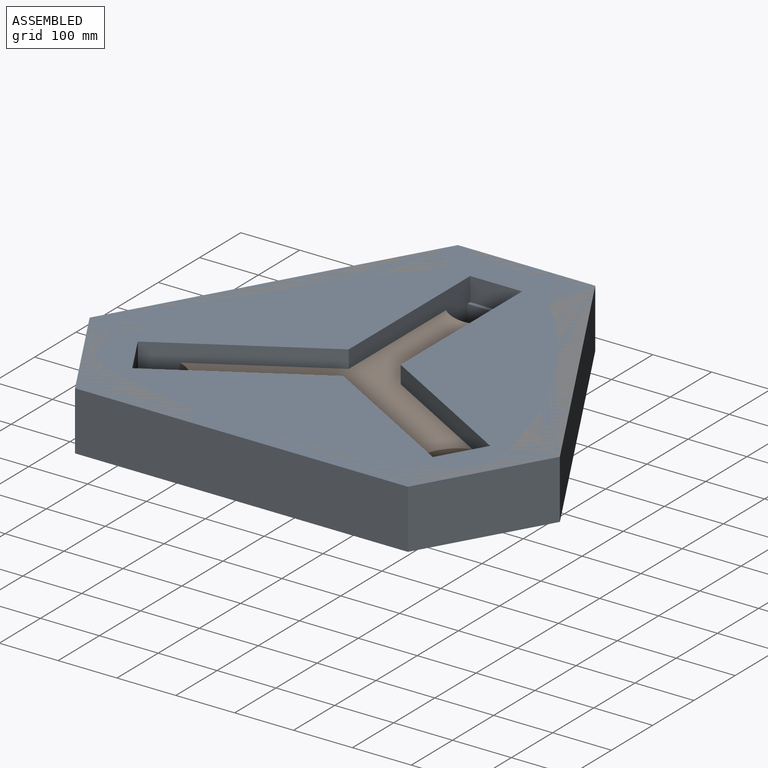
[diagram: assembled view]
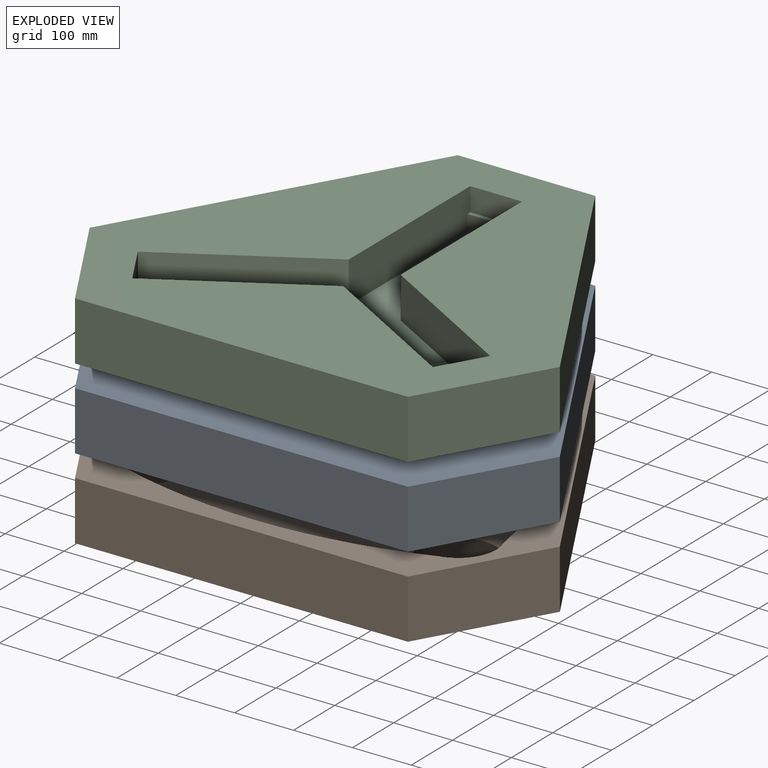
[diagram: exploded view]
GUIDED TOUR — FREECAD ASSEMBLY "styrofoam"

This assembly has 3 components, labeled P0..P2 below (a component is one placed body or linked part; the same part can appear more than once), held together by 0 modeled joints plus 3 derived contact edges. A joint is a constraint between two components; its type names the relative motion it leaves free:
  CONTACT — a derived adjacency edge — the two components touch in the source model (clearance under 2% of the assembly's diagonal); it is measured from the geometry, not a modeled constraint.
Axis/direction vectors are unit vectors and 'through' points are millimeter coordinates, both in the assembly's world frame.

MATES
  1. CONTACT "contact_0_1": P0 <-> P1, contact direction (0.000, 0.000, -1.000) through (399.45, -95.86, 0.00) mm (derived from contact, not a modeled constraint)
  2. CONTACT "contact_0_2": P0 <-> P2, contact direction (0.000, 0.000, 1.000) through (44.10, 313.32, 60.00) mm (derived from contact, not a modeled constraint)
  3. CONTACT "contact_1_2": P1 <-> P2, contact direction (0.000, 0.000, 1.000) through (399.45, -95.86, 0.00) mm (derived from contact, not a modeled constraint)

ASSEMBLY ORDER
  1. P0 — the base component [order heuristic]
  2. P1 [order heuristic]
  3. P2 [order heuristic]
Order-tag legend:
  [order heuristic] — this assembly is geometrically interlocked (no collision-free removal order exists), so components are listed in mate-graph order; insertion feasibility is not verified.

Of the 3 components, 3 carry a construction recipe — the FreeCAD feature program (sketches with constraints, then the solid features that consume them) that regenerates the part from scratch, quoted from this document or from the linked companion document it references; the rest are supplied as boundary geometry only. The tour below walks the components in assembly order: each is shown spotlighted twice — in the assembled view, then in the exploded view, where a leader line traces a displaced component back to its assembled socket (components that stay in place when exploded have no leader line; saturated green if recipe-attached, orange if geometry-only; every other component desaturated gray) — followed by its recipe or geometry summary and the mates that hold it.
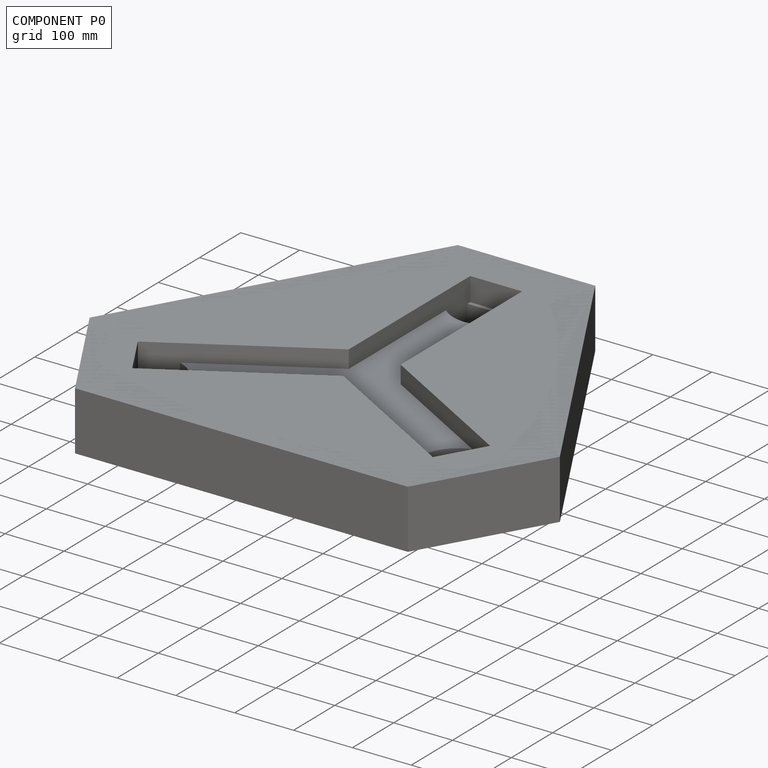
[diagram: component P0 — assembled]
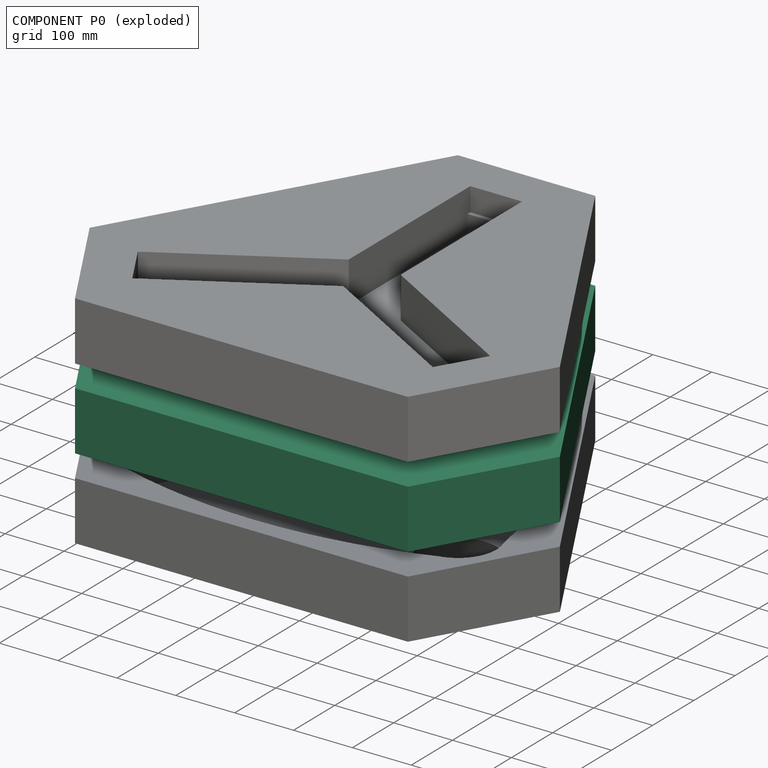
[diagram: component P0 — exploded]
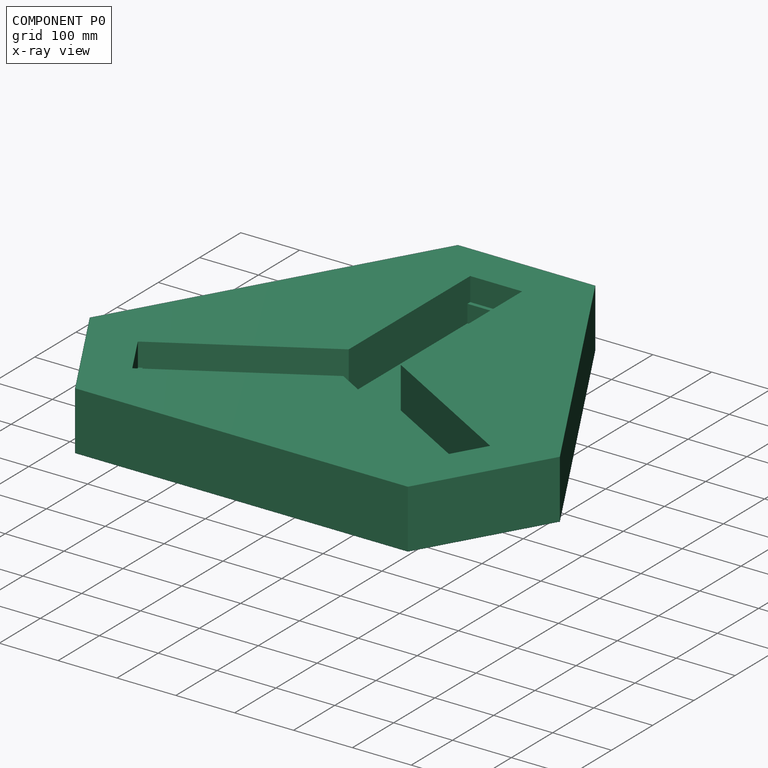
[diagram: component P0 — x-ray view]
COMPONENT P0 — recipe-attached ("Link", a linked part whose construction recipe lives in a companion FreeCAD document of the same project; that document's serialized recipe follows).
Held by: resting contact with P1 (derived edge); resting contact with P2 (derived edge).
Construction recipe (the companion document, serialized — sketch geometry with constraints, then the solid features built on it; lengths are millimeters unless a unit is written):

FCSTD DOCUMENT  (FreeCAD 0.21R32532 (Git))
Label: composit_full_size2part_model
License: All rights reserved
LicenseURL: http://en.wikipedia.org/wiki/All_rights_reserved
objects: App::Link×31, Part::FeaturePython×10, Sketcher::SketchObject×6, PartDesign::CoordinateSystem×4, PartDesign::SubShapeBinder×4, PartDesign::Pocket×4, App::DocumentObjectGroup×3, PartDesign::Body×3, PartDesign::Pad×2, App::FeaturePython×1, Part::Feature×1, PartDesign::FeatureBase×1, PartDesign::PolarPattern×1, App::Part×1
note: 42 computed .brp shape members not serialized (recipe doc carries the construction recipe); baked Part::Feature solids carry a one-line shape summary decoded from their .brp
EXTERNAL_REF file=composit_full_size2part.FCStd obj=Local_CS011
EXTERNAL_REF file=composit_full_size2part.FCStd obj=Body
EXTERNAL_REF file=composit_full_size2part.FCStd obj=Local_CS012
EXTERNAL_REF file=composit_full_size2part.FCStd obj=Body001
EXTERNAL_REF file=composit_full_size2part.FCStd obj=DatumPoint005
EXTERNAL_REF file=composit_full_size2part.FCStd obj=Local_CS066
EXTERNAL_REF file=composit_full_size2part.FCStd obj=Body020
EXTERNAL_REF file=basin_big.FCStd obj=Body_7
EXTERNAL_REF file=composit_full_size2part.FCStd obj=Body022
EXTERNAL_REF file=composit_full_size2part.FCStd obj=Local_CS051
EXTERNAL_REF file=composit_full_size2part.FCStd obj=Body019
EXTERNAL_REF file=composit_full_size2part.FCStd obj=Local_CS050
EXTERNAL_REF file=composit_full_size2part.FCStd obj=Local_CS052
EXTERNAL_REF file=composit_full_size2part.FCStd obj=basement_plywood
EXTERNAL_REF file=composit_full_size2part.FCStd obj=LCS_0
EXTERNAL_REF file=hub2108.FCStd obj=Local_CS001
EXTERNAL_REF file=hub2108.FCStd obj=Body
EXTERNAL_REF file=composit_full_size2part.FCStd obj=Local_CS068
EXTERNAL_REF file=hub2108.FCStd obj=Local_CS
EXTERNAL_REF file=composit_full_size2part.FCStd obj=Body042
EXTERNAL_REF file=composit_full_size2part.FCStd obj=Local_CS054
EXTERNAL_REF file=composit_full_size2part.FCStd obj=Local_CS067
EXTERNAL_REF file=composit_full_size2part.FCStd obj=Body028
EXTERNAL_REF file=composit_full_size2part.FCStd obj=Local_CS055
EXTERNAL_REF file=composit_full_size2part.FCStd obj=Local_CS069
EXTERNAL_REF file=composit_full_size2part.FCStd obj=Body029
EXTERNAL_REF file=composit_full_size2part.FCStd obj=Local_CS058
EXTERNAL_REF file=composit_full_size2part.FCStd obj=Local_CS059
EXTERNAL_REF file=composit_full_size2part.FCStd obj=Body034
EXTERNAL_REF file=composit_full_size2part.FCStd obj=Local_CS001
EXTERNAL_REF file=composit_full_size2part.FCStd obj=Local_CS064
EXTERNAL_REF file=composit_full_size2part.FCStd obj=Body041
EXTERNAL_REF file=composit_full_size2part.FCStd obj=Local_CS060
EXTERNAL_REF file=composit_full_size2part.FCStd obj=Local_CS061
EXTERNAL_REF file=composit_full_size2part.FCStd obj=Body033
EXTERNAL_REF file=composit_full_size2part.FCStd obj=Body045
EXTERNAL_REF file=composit_full_size2part.FCStd obj=Body048
EXTERNAL_REF file=composit_full_size2part.FCStd obj=Local_CS070
EXTERNAL_REF file=composit_full_size2part.FCStd obj=Part002
EXTERNAL_REF file=composit_full_size2part.FCStd obj=LCS_024
EXTERNAL_REF file=composit_full_size2part.FCStd obj=plexiglasss_shield
EXTERNAL_REF file=composit_full_size2part.FCStd obj=Local_CS005
EXTERNAL_REF file=ugol90degX40mm.FCStd obj=Local_CS
EXTERNAL_REF file=ugol90degX40mm.FCStd obj=Body
EXTERNAL_REF file=../Ручка-профиль CT2 L60.FCStd obj=Local_CS
EXTERNAL_REF file=../Ручка-профиль CT2 L60.FCStd obj=Body
EXTERNAL_REF file=composit_full_size2part.FCStd obj=Body049
EXTERNAL_REF file=composit_full_size2part.FCStd obj=Body043
EXTERNAL_REF file=composit_full_size2part.FCStd obj=Body026
EXTERNAL_REF file=composit_full_size2part.FCStd obj=Body050
EXTERNAL_REF file=composit_full_size2part.FCStd obj=Body051
EXTERNAL_REF file=composit_full_size2part.FCStd obj=Body054
EXTERNAL_REF file=composit_full_size2part_transport.FCStd obj=Body001
EXTERNAL_REF file=composit_full_size2part_transport.FCStd obj=Body
EXTERNAL_REF file=composit_full_size2part.FCStd obj=Local_CS073
EXTERNAL_REF file=composit_full_size2part.FCStd obj=Body058

FEATURE [PartDesign::CoordinateSystem] LCS_Origin
  AttacherType = Attacher::AttachEngine3D
  MapMode = 2
  Support = -> [X_Axis]
FEATURE [App::DocumentObjectGroup] Constraints
FEATURE [App::FeaturePython] Variables  # WARN: FeaturePython — macro-defined, semantics opaque (R4)
  Type = App::PropertyContainer
FEATURE [App::DocumentObjectGroup] Configurations
FEATURE [App::Link] Body_material_0_30ansi  label="Body_material_0.30ansi"
  AssemblyType = Part::Link
  AttachedBy = #Local_CS011
  AttachedTo = Parent Assembly#LCS_Origin
  LinkPlacement = pos=(0,8.37158,0) rot=(0,0,1;0rad)
  LinkedObject = -> <external composit_full_size2part.FCStd>#Body
  Placement = pos=(0,8.37158,0) rot=(0,0,1;0rad)
  SolverId = Asm4EE
  expr: Placement = LCS_Origin.Placement * AttachmentOffset * composit_full_size2part#Local_CS011.Placement ^ -1
FEATURE [App::Link] Body001_material_0_30ansi  label="Body001_material_0.30ansi"
  AssemblyType = Part::Link
  AttachedBy = #Local_CS012
  AttachedTo = Parent Assembly#LCS_Origin
  AttachmentOffset = pos=(0,0,0) rot=(0,0,1;4.18879rad)
  LinkPlacement = pos=(7.25,-4.18579,0) rot=(0,0,1;4.18879rad)
  LinkedObject = -> <external composit_full_size2part.FCStd>#Body001
  Placement = pos=(7.25,-4.18579,0) rot=(0,0,1;4.18879rad)
  SolverId = Asm4EE
  expr: Placement = LCS_Origin.Placement * AttachmentOffset * composit_full_size2part#Local_CS012.Placement ^ -1
FEATURE [App::Link] hor_amplifier
  AssemblyType = Part::Link
  AttachedBy = #Local_CS066
  AttachedTo = Body_material_0_30ansi#DatumPoint005
  AttachmentOffset = pos=(0,0,0) rot=(1,0,0;4.71239rad)
  LinkPlacement = pos=(1.7e-15,201.803,407.176) rot=(1,0,0;3.19975rad)
  LinkedObject = -> <external composit_full_size2part.FCStd>#Body020
  Placement = pos=(1.7e-15,201.803,407.176) rot=(1,0,0;3.19975rad)
  SolverId = Asm4EE
  expr: Placement = Body_material_0_30ansi.Placement * composit_full_size2part#DatumPoint005.Placement * AttachmentOffset * composit_full_size2part#Local_CS066.Placement ^ -1
FEATURE [PartDesign::CoordinateSystem] Local_CS044
  AttacherType = Attacher::AttachEngine3D
  MapMode = 4
  Placement = pos=(0,0,0) rot=(0.57735,0.57735,0.57735;2.0944rad)
  Support = -> [XY_Plane044]
FEATURE [Part::Feature] Part__Feature  label="module002"
  shape: bbox 170 x 148 x 41.12 mm, 715 faces (baked)
FEATURE [PartDesign::FeatureBase] BaseFeature
  BaseFeature = -> Part__Feature
FEATURE [PartDesign::Body] Body017
  BaseFeature = -> Part__Feature
  Group = -> [BaseFeature,Local_CS044]
  Origin = -> Origin044
  Tip = -> BaseFeature
FEATURE [App::DocumentObjectGroup] Parts
  Group = -> [Body017,Part__Feature]
FEATURE [App::Link] Body024_material_0_30ansi  label="Body024_material_0.30ansi"
  AssemblyType = Part::Link
  AttachedBy = #Local_CS049
  AttachedTo = Parent Assembly#LCS_Origin
  AttachmentOffset = pos=(0,0,3) rot=(0,0,1;-1.0472rad)
  LinkPlacement = pos=(0,0,3) rot=(0,0,1;5.23599rad)
  Placement = pos=(0,0,3) rot=(0,0,1;5.23599rad)
  SolverId = Asm4EE
  expr: Placement = LCS_Origin.Placement * AttachmentOffset * composit_full_size2part#Local_CS049.Placement ^ -1
FEATURE [App::Link] basin
  AssemblyType = Part::Link
  AttachedBy = #LCS_021
  AttachedTo = Parent Assembly#LCS_Origin
  LinkedObject = -> <external basin_big.FCStd>#Body_7
  SolverId = Asm4EE
  expr: LinkedObject = <<basin_big>>#<<basin>>._self
FEATURE [App::Link] basin_limiter_body
  LinkPlacement = pos=(0,0,0) rot=(0,0,1;2.0944rad)
  LinkedObject = -> <external composit_full_size2part.FCStd>#Body022
  Placement = pos=(0,0,0) rot=(0,0,1;2.0944rad)
FEATURE [App::Link] basement_proxy
  AssemblyType = Part::Link
  AttachedBy = #Local_CS051
  AttachedTo = Parent Assembly#LCS_Origin
  AttachmentOffset = pos=(0,0,0) rot=(0,0,1;-3.14159rad)
  LinkPlacement = pos=(0,0,-3) rot=(0,0,1;3.14159rad)
  LinkedObject = -> <external composit_full_size2part.FCStd>#Body019
  Placement = pos=(0,0,-3) rot=(0,0,1;3.14159rad)
  SolverId = Asm4EE
  expr: Placement = LCS_Origin.Placement * AttachmentOffset * composit_full_size2part#Local_CS051.Placement ^ -1
FEATURE [App::Link] basement_plywood
  AssemblyType = Part::Link
  AttachedBy = #Local_CS052
  AttachedTo = basement_proxy#Local_CS050
  AttachmentOffset = pos=(0,0,0) rot=(0,0,1;2.0944rad)
  LinkPlacement = pos=(0,0,-21) rot=(0,0,1;5.23599rad)
  LinkedObject = -> <external composit_full_size2part.FCStd>#basement_plywood
  Placement = pos=(0,0,-21) rot=(0,0,1;5.23599rad)
  SolverId = Asm4EE
  expr: Placement = basement_proxy.Placement * composit_full_size2part#Local_CS050.Placement * AttachmentOffset * composit_full_size2part#Local_CS052.Placement ^ -1
FEATURE [App::Link] hub2108
  AssemblyType = Part::Link
  AttachedBy = #Local_CS001
  AttachedTo = basement_plywood#LCS_0
  LinkPlacement = pos=(0,0,-88) rot=(0,0,1;5.23599rad)
  LinkedObject = -> <external hub2108.FCStd>#Body
  Placement = pos=(0,0,-88) rot=(0,0,1;5.23599rad)
  SolverId = Asm4EE
  expr: Placement = basement_plywood.Placement * composit_full_size2part#LCS_0.Placement * AttachmentOffset * hub2108#Local_CS001.Placement ^ -1
FEATURE [App::Link] basement2_proxy
  AssemblyType = Part::Link
  AttachedBy = #Local_CS068
  AttachedTo = hub2108#Local_CS
  AttachmentOffset = pos=(0,0,0) rot=(0,0,1;1.0472rad)
  LinkPlacement = pos=(0,0,-91) rot=(0,0,1;0rad)
  LinkedObject = -> <external composit_full_size2part.FCStd>#Body042
  Placement = pos=(0,0,-91) rot=(0,0,1;0rad)
  SolverId = Asm4EE
  expr: Placement = hub2108.Placement * hub2108#Local_CS.Placement * AttachmentOffset * composit_full_size2part#Local_CS068.Placement ^ -1
FEATURE [App::Link] plywood_basement_2
  AssemblyType = Part::Link
  AttachedBy = #Local_CS054
  AttachedTo = basement2_proxy#Local_CS067
  LinkPlacement = pos=(0,0,-109) rot=(0,0,1;0rad)
  LinkedObject = -> <external composit_full_size2part.FCStd>#Body028
  Placement = pos=(0,0,-109) rot=(0,0,1;0rad)
  SolverId = Asm4EE
  expr: Placement = basement2_proxy.Placement * composit_full_size2part#Local_CS067.Placement * AttachmentOffset * composit_full_size2part#Local_CS054.Placement ^ -1
FEATURE [App::Link] pillar_material_0_30ansi  label="pillar_material_0.30ansi"
  AssemblyType = Part::Link
  AttachedBy = #Local_CS055
  AttachedTo = basement2_proxy#Local_CS069
  LinkPlacement = pos=(1.705e-13,384,-88) rot=(0,0,1;0rad)
  LinkedObject = -> <external composit_full_size2part.FCStd>#Body029
  Placement = pos=(1.705e-13,384,-88) rot=(0,0,1;0rad)
  SolverId = Asm4EE
  expr: Placement = basement2_proxy.Placement * composit_full_size2part#Local_CS069.Placement * AttachmentOffset * composit_full_size2part#Local_CS055.Placement ^ -1
FEATURE [App::Link] pillar_corner_bottom_material_0_30ansi  label="pillar_corner_bottom_material_0.30ansi"
  AssemblyType = Part::Link
  AttachedBy = #Local_CS058
  AttachedTo = pillar_material_0_30ansi#Local_CS059
  LinkPlacement = pos=(18.3,329.5,-88) rot=(0,0,1;1.5708rad)
  LinkedObject = -> <external composit_full_size2part.FCStd>#Body034
  Placement = pos=(18.3,329.5,-88) rot=(0,0,1;1.5708rad)
  SolverId = Asm4EE
  expr: Placement = pillar_material_0_30ansi.Placement * composit_full_size2part#Local_CS059.Placement * AttachmentOffset * composit_full_size2part#Local_CS058.Placement ^ -1
FEATURE [App::Link] Part
  AssemblyType = Part::Link
  AttachedBy = #Local_CS028
  AttachedTo = Body_material_0_30ansi#Local_CS001
  AttachmentOffset = pos=(0,0,3) rot=(0,0,1;3.14159rad)
  LinkPlacement = pos=(0,181.372,1431) rot=(0,0,1;3.14159rad)
  Placement = pos=(0,181.372,1431) rot=(0,0,1;3.14159rad)
  SolverId = Asm4EE
  expr: Placement = Body_material_0_30ansi.Placement * composit_full_size2part#Local_CS001.Placement * AttachmentOffset * composit_full_size2part#Local_CS028.Placement ^ -1
FEATURE [Part::FeaturePython] Circular_Part  # Draft array (typed FeaturePython)
  AngleStep = 120
  ArrayType = Circular Array
  Axis = -> Z_Axis
  Count = 3
  Index = 1
  PlacementList = 3 placements: [(-1.00974e-28,181.372,1431),(-157.072,-90.6858,1431),(157.072,-90.6858,1431)]
  Placer = pos=(0,0,0) rot=(0,0,1;4.18879rad)
  ScaleList = (3) [(1,1,1),(1,1,1),(1,1,1)]
  Scaler = 1
  ShowElement = false
  SourceObject = -> Part
  expr: .Placer.Rotation.Angle = AngleStep * Index
  expr: AngleStep = 360 / Count
FEATURE [App::Link] Body041_material_0_30ansi  label="Body041_material_0.30ansi"
  AssemblyType = Part::Link
  AttachedBy = #Local_CS064
  AttachedTo = basement2_proxy#Local_CS069
  AttachmentOffset = pos=(0,16.7,514) rot=(0,0,1;4.71239rad)
  LinkPlacement = pos=(1.611e-13,367.3,426) rot=(1,0,0;1.5708rad)
  LinkedObject = -> <external composit_full_size2part.FCStd>#Body041
  Placement = pos=(1.611e-13,367.3,426) rot=(1,0,0;1.5708rad)
  SolverId = Asm4EE
  expr: Placement = basement2_proxy.Placement * composit_full_size2part#Local_CS069.Placement * AttachmentOffset * composit_full_size2part#Local_CS064.Placement ^ -1
FEATURE [App::Link] pillar_corner_top_material_0_30ansi  label="pillar_corner_top_material_0.30ansi"
  AssemblyType = Part::Link
  AttachedBy = #Local_CS061
  AttachedTo = pillar_material_0_30ansi#Local_CS060
  LinkPlacement = pos=(1.696e-13,382,1506) rot=(0,0,1;0rad)
  LinkedObject = -> <external composit_full_size2part.FCStd>#Body033
  Placement = pos=(1.696e-13,382,1506) rot=(0,0,1;0rad)
  SolverId = Asm4EE
  expr: Placement = pillar_material_0_30ansi.Placement * composit_full_size2part#Local_CS060.Placement * AttachmentOffset * composit_full_size2part#Local_CS061.Placement ^ -1
FEATURE [Part::FeaturePython] Circular_pillar_material_0_30ansi  label="Circular_pillar_material_0.30ansi"  # Draft array (typed FeaturePython)
  AngleStep = 120
  ArrayType = Circular Array
  Axis = -> Z_Axis
  Count = 3
  Index = 1
  PlacementList = 3 placements: [(1.7053e-13,384,-88),(-332.554,-192,-88),(332.554,-192,-88)]
  Placer = pos=(0,0,0) rot=(0,0,1;4.18879rad)
  ScaleList = (3) [(1,1,1),(1,1,1),(1,1,1)]
  Scaler = 1
  ShowElement = false
  SourceObject = -> pillar_material_0_30ansi
  expr: .Placer.Rotation.Angle = AngleStep * Index
  expr: AngleStep = 360 / Count
FEATURE [Part::FeaturePython] Circular_pillar_corner_bottom_material_0_30ansi  label="Circular_pillar_corner_bottom_material_0.30ansi"  # Draft array (typed FeaturePython)
  AngleStep = 120
  ArrayType = Circular Array
  Axis = -> Z_Axis
  Count = 3
  Index = 1
  PlacementList = 3 placements: [(18.3,329.5,-88),(-294.505,-148.902,-88),(276.205,-180.598,-88)]
  Placer = pos=(0,0,0) rot=(0,0,1;4.18879rad)
  ScaleList = (3) [(1,1,1),(1,1,1),(1,1,1)]
  Scaler = 1
  ShowElement = false
  SourceObject = -> pillar_corner_bottom_material_0_30ansi
  expr: .Placer.Rotation.Angle = AngleStep * Index
  expr: AngleStep = 360 / Count
FEATURE [Part::FeaturePython] Circular_Body041_material_0_30ansi  label="Circular_Body041_material_0.30ansi"  # Draft array (typed FeaturePython)
  AngleStep = 120
  ArrayType = Circular Array
  Axis = -> Z_Axis
  Count = 3
  Index = 1
  PlacementList = 3 placements: [(1.61069e-13,367.3,426),(-318.091,-183.65,426),(318.091,-183.65,426)]
  Placer = pos=(0,0,0) rot=(0,0,1;4.18879rad)
  ScaleList = (3) [(1,1,1),(1,1,1),(1,1,1)]
  Scaler = 1
  ShowElement = false
  SourceObject = -> Body041_material_0_30ansi
  expr: .Placer.Rotation.Angle = AngleStep * Index
  expr: AngleStep = 360 / Count
FEATURE [Part::FeaturePython] Circular_pillar_corner_top_material_0_30ansi  label="Circular_pillar_corner_top_material_0.30ansi"  # Draft array (typed FeaturePython)
  AngleStep = 120
  ArrayType = Circular Array
  Axis = -> Z_Axis
  Count = 3
  Index = 1
  PlacementList = 3 placements: [(1.69642e-13,382,1506),(-330.822,-191,1506),(330.822,-191,1506)]
  Placer = pos=(0,0,0) rot=(0,0,1;4.18879rad)
  ScaleList = (3) [(1,1,1),(1,1,1),(1,1,1)]
  Scaler = 1
  ShowElement = false
  SourceObject = -> pillar_corner_top_material_0_30ansi
  expr: .Placer.Rotation.Angle = AngleStep * Index
  expr: AngleStep = 360 / Count
FEATURE [App::Link] Body045_material_0_30ansi  label="Body045_material_0.30ansi"
  LinkPlacement = pos=(0,0,1503) rot=(0,0,1;0rad)
  LinkedObject = -> <external composit_full_size2part.FCStd>#Body045
  Placement = pos=(0,0,1503) rot=(0,0,1;0rad)
FEATURE [App::Link] plexiglass_shield
  LinkPlacement = pos=(0,0,383) rot=(0,0,1;0rad)
  LinkedObject = -> <external composit_full_size2part.FCStd>#Body048
  Placement = pos=(0,0,383) rot=(0,0,1;0rad)
FEATURE [App::Link] Part002
  AssemblyType = Part::Link
  AttachedBy = #Local_CS041
  AttachedTo = Body_material_0_30ansi#Local_CS070
  AttachmentOffset = pos=(0,0,0) rot=(0,0,1;1.5708rad)
  LinkPlacement = pos=(14.5,8.37158,410) rot=(0,0,-1;1.0472rad)
  LinkedObject = -> <external composit_full_size2part.FCStd>#Part002
  Placement = pos=(14.5,8.37158,410) rot=(0,0,-1;1.0472rad)
  SolverId = Asm4EE
  expr: Placement = Body_material_0_30ansi.Placement * composit_full_size2part#Local_CS070.Placement * AttachmentOffset ^ -1
FEATURE [Sketcher::SketchObject] Sketch
  FullyConstrained = true
  sketch-geometry (1):
    g0: Circle CenterX=0 CenterY=0 CenterZ=0 NormalX=0 NormalY=0 NormalZ=1 AngleXU=0 Radius=385
  constraints (2):
    c: Coincident(g0,g-1)
    c: Radius(g0) = 385
FEATURE [App::Link] plexiglasss_bottom_shield_material_0_30ansi  label="plexiglasss_bottom_shield_material_0.30ansi"
  AssemblyType = Part::Link
  AttachedBy = #LCS_024
  AttachedTo = Parent Assembly#LCS_Origin
  AttachmentOffset = pos=(0,0,0) rot=(0,0,1;1.0472rad)
  LinkPlacement = pos=(0,0,0) rot=(0,0,1;1.0472rad)
  LinkedObject = -> <external composit_full_size2part.FCStd>#plexiglasss_shield
  Placement = pos=(0,0,0) rot=(0,0,1;1.0472rad)
  SolverId = Asm4EE
  expr: Placement = LCS_Origin.Placement * AttachmentOffset * composit_full_size2part#LCS_024.Placement ^ -1
FEATURE [Part::FeaturePython] Circular_Part002  # Draft array (typed FeaturePython)
  AngleStep = 120
  ArrayType = Circular Array
  Axis = -> Z_Axis
  Count = 3
  Index = 1
  PlacementList = 3 placements: [(14.5,8.37158,410),(-14.5,8.37158,410),(-4.36096e-13,-16.7432,410)]
  Placer = pos=(0,0,0) rot=(0,0,1;4.18879rad)
  ScaleList = (3) [(1,1,1),(1,1,1),(1,1,1)]
  Scaler = 1
  ShowElement = false
  SourceObject = -> Part002
  expr: .Placer.Rotation.Angle = AngleStep * Index
  expr: AngleStep = 360 / Count
FEATURE [Part::FeaturePython] Circular_plexiglasss_bottom_shield_material_0_30ansi  label="Circular_plexiglasss_bottom_shield_material_0.30ansi"  # Draft array (typed FeaturePython)
  AngleStep = 120
  ArrayType = Circular Array
  Axis = -> Z_Axis
  Count = 2
  Index = 1
  PlacementList = 2 placements: [(0,0,0),(0,0,0)]
  Placer = pos=(0,0,0) rot=(0,0,1;2.0944rad)
  ScaleList = (2) [(1,1,1),(1,1,1)]
  Scaler = 1
  ShowElement = false
  SourceObject = -> plexiglasss_bottom_shield_material_0_30ansi
  expr: .Placer.Rotation.Angle = AngleStep * Index
  expr: AngleStep = 240 / Count
FEATURE [App::Link] Body_material_0_30ansi001  label="Body_material_0.30ansi001"
  AssemblyType = Part::Link
  AttachedBy = #Local_CS
  AttachedTo = Body_material_0_30ansi#Local_CS005
  AttachmentOffset = pos=(0,0,0) rot=(0,0,1;3.14159rad)
  LinkPlacement = pos=(14.5,294.372,0) rot=(0,0,-1;4.71239rad)
  LinkedObject = -> <external ugol90degX40mm.FCStd>#Body
  Placement = pos=(14.5,294.372,0) rot=(0,0,-1;4.71239rad)
  SolverId = Asm4EE
  expr: Placement = Body_material_0_30ansi.Placement * composit_full_size2part#Local_CS005.Placement * AttachmentOffset * ugol90degX40mm#Local_CS.Placement ^ -1
FEATURE [Part::FeaturePython] Mirror_Body_material_0_30ansi001  label="Mirror_Body_material_0.30ansi001"  # Draft array (typed FeaturePython)
  ArrayType = Mirror Array
  Axis = -> YZ_Plane
  AxisPlacement = pos=(0,0,0) rot=(1,1,1;2.0944rad)
  Count = 2
  Index = 1
  PlacementList = 2 placements: [(14.5,294.372,-3.54987e-30),(-14.5,294.372,-4.82947e-15)]
  Placer = pos=(588.743,2.79e-14,-29) rot=(0,0,1;3.14159rad)
  ScaleList = (2) [(1,1,1),(-1,-1,-1)]
  Scaler = -1
  ShowElement = false
  SourceObject = -> Body_material_0_30ansi001
  expr: .Placer.Base = .Placer.Rotation * minvert(.AxisPlacement) * .SourceObject.Placement.Base * -2 * (Index % 2)
  expr: .Placer.Rotation.Angle = 180 * (Index % 2)
  expr: Scaler = 1 - 2 * (Index % 2)
FEATURE [Part::FeaturePython] Circular_Mirror_Body_material_0_30ansi001  label="Circular_Mirror_Body_material_0.30ansi001"  # Draft array (typed FeaturePython)
  AngleStep = 120
  ArrayType = Circular Array
  Axis = -> Z_Axis
  Count = 3
  Index = 1
  PlacementList = 3 placements: [(0,0,0),(0,0,0),(0,0,0)]
  Placer = pos=(0,0,0) rot=(0,0,1;4.18879rad)
  ScaleList = (3) [(1,1,1),(1,1,1),(1,1,1)]
  Scaler = 1
  ShowElement = false
  SourceObject = -> Mirror_Body_material_0_30ansi001
  expr: .Placer.Rotation.Angle = AngleStep * Index
  expr: AngleStep = 360 / Count
FEATURE [App::Link] Body  label="handle"
  AssemblyType = Part::Link
  AttachedBy = #Local_CS
  AttachedTo = Body024_material_0_30ansi#Local_CS071
  AttachmentOffset = pos=(0,268,1.5) rot=(0,0,1;1.5708rad)
  LinkPlacement = pos=(294.41,-122.73,271) rot=(0.706137,0.052363,0.706137;3.24622rad)
  LinkedObject = -> <external ../Ручка-профиль CT2 L60.FCStd>#Body
  Placement = pos=(294.41,-122.73,271) rot=(0.706137,0.052363,0.706137;3.24622rad)
  SolverId = Asm4EE
  expr: .AttachmentOffset.Base.y = <<composit_full_size2part>>#Binder173.Placement.Base.z
  expr: Placement = Body024_material_0_30ansi.Placement * composit_full_size2part#Local_CS071.Placement * AttachmentOffset * __________________________CT2_L60#Local_CS.Placement ^ -1
FEATURE [App::Link] tech_plexiglass_shield_material_0_30ansi  label="tech_plexiglass_shield_material_0.30ansi"
  LinkPlacement = pos=(0,0,0) rot=(0,0,1;5.23599rad)
  LinkedObject = -> <external composit_full_size2part.FCStd>#Body049
  Placement = pos=(0,0,0) rot=(0,0,1;5.23599rad)
FEATURE [App::Link] tech_bottom_proxy
  LinkPlacement = pos=(0,0,0) rot=(0,0,1;5.23599rad)
  LinkedObject = -> <external composit_full_size2part.FCStd>#Body043
  Placement = pos=(0,0,0) rot=(0,0,1;5.23599rad)
FEATURE [App::Link] tech_bottom
  LinkPlacement = pos=(0,0,0) rot=(0,0,1;5.23599rad)
  LinkedObject = -> <external composit_full_size2part.FCStd>#Body026
  Placement = pos=(0,0,0) rot=(0,0,1;5.23599rad)
FEATURE [App::Link] Body050_material_0_30ansi  label="Body050_material_0.30ansi"
  AttachmentOffset = pos=(0,0,1600) rot=(0,0,1;0rad)
  LinkPlacement = pos=(0,0,1508) rot=(0,0,1;0rad)
  LinkedObject = -> <external composit_full_size2part.FCStd>#Body050
  Placement = pos=(0,0,1508) rot=(0,0,1;0rad)
FEATURE [Part::FeaturePython] Circular_Body024_material_0_30ansi  label="Circular_Body024_material_0.30ansi"  # Draft array (typed FeaturePython)
  AngleStep = 120
  ArrayType = Circular Array
  Axis = -> Z_Axis
  Count = 2
  Index = 1
  PlacementList = 2 placements: [(1.97215e-31,1.97215e-31,3),(-8.44624e-16,3.15218e-15,3)]
  Placer = pos=(0,0,0) rot=(0,0,1;2.0944rad)
  ScaleList = (2) [(1,1,1),(1,1,1)]
  Scaler = 1
  ShowElement = false
  SourceObject = -> Body024_material_0_30ansi
  expr: .Placer.Rotation.Angle = AngleStep * Index
  expr: AngleStep = 120 deg
FEATURE [App::Link] hat1_material_0_30ansi  label="hat1_material_0.30ansi"
  LinkPlacement = pos=(0,0,1585) rot=(0,0,1;0rad)
  LinkedObject = -> <external composit_full_size2part.FCStd>#Body051
  Placement = pos=(0,0,1585) rot=(0,0,1;0rad)
FEATURE [App::Link] Body051_material_0_30ansi  label="Body051_material_0.30ansi"
  LinkPlacement = pos=(0,0,1508) rot=(0,0,1;2.0944rad)
  LinkedObject = -> <external composit_full_size2part.FCStd>#Body054
  Placement = pos=(0,0,1508) rot=(0,0,1;2.0944rad)
FEATURE [App::Link] top
  LinkPlacement = pos=(0,0,1600) rot=(0,0,1;0rad)
  LinkedObject = -> <external composit_full_size2part_transport.FCStd>#Body001
  Placement = pos=(0,0,1600) rot=(0,0,1;0rad)
FEATURE [App::Link] bottom
  LinkPlacement = pos=(0,0,-159) rot=(0,0,1;0rad)
  LinkedObject = -> <external composit_full_size2part_transport.FCStd>#Body
  Placement = pos=(0,0,-159) rot=(0,0,1;0rad)
FEATURE [App::Link] Body058
  AttachedBy = #Local_CS073
  AttachedTo = basement2_proxy#Local_CS069
  AttachmentOffset = pos=(0,0,471) rot=(0,0,1;3.14159rad)
  LinkPlacement = pos=(1.705e-13,384,383) rot=(0,0,1;0rad)
  LinkedObject = -> <external composit_full_size2part.FCStd>#Body058
  Placement = pos=(1.705e-13,384,383) rot=(0,0,1;0rad)
  SolverId = Asm4EE
  expr: Placement = basement2_proxy.Placement * composit_full_size2part#Local_CS069.Placement * AttachmentOffset * composit_full_size2part#Local_CS073.Placement ^ -1
FEATURE [PartDesign::CoordinateSystem] LCS_0
  AttacherType = Attacher::AttachEngine3D
  MapMode = 2
  Support = -> [X_Axis045]
FEATURE [PartDesign::SubShapeBinder] Binder
  BindCopyOnChange = 0
  BindMode = 0
  ClaimChildren = false
  Context = -> Model [top001.Binder.]
  Fuse = false
  MakeFace = true
  OffsetFill = false
  OffsetIntersection = false
  OffsetJoinType = 0
  OffsetOpenResult = false
  PartialLoad = false
  Placement = pos=(0,0,100) rot=(0,0,1;0rad)
  Relative = true
  Support = -> [Circular_Part[0.Part_2.top_bottom_part.Pocket082.Face5]]
  _Version = 2
FEATURE [Sketcher::SketchObject] Sketch001
  AttachmentOffset = pos=(0,0,100) rot=(0,0,1;0rad)
  ExternalGeometry = -> [Binder]
  FullyConstrained = true
  MapMode = 5
  Placement = pos=(0,0,100) rot=(0,0,1;0rad)
  Support = -> [XY_Plane045]
  sketch-geometry (5):
    g0: LineSegment StartX=44.1 StartY=313.322 StartZ=0 EndX=-44.1 EndY=313.322 EndZ=0
    g1: LineSegment StartX=-44.1 StartY=313.322 StartZ=0 EndX=-44.1 EndY=320.176 EndZ=0
    g2: LineSegment StartX=-44.1 StartY=320.176 StartZ=0 EndX=44.1 EndY=320.176 EndZ=0
    g3: LineSegment StartX=44.1 StartY=320.176 StartZ=0 EndX=44.1 EndY=313.322 EndZ=0
    g4: GeomPoint X=0 Y=316.749 Z=0
  constraints (13):
    c: Coincident(g0,g1)
    c: Coincident(g1,g2)
    c: Coincident(g2,g3)
    c: Coincident(g3,g0)
    c: Horizontal(g0)
    c: Horizontal(g2)
    c: Vertical(g1)
    c: Vertical(g3)
    c: PointOnObject(g4,g-2)
    c: Symmetric(g0,g2,g4)
    c: DistanceY(g-4,g0) = 5
    c: DistanceX(g-5,g0) = 5
    c: DistanceY(g-3,g2) = 5
FEATURE [Sketcher::SketchObject] Sketch002
  ExternalGeometry = -> [Sketch001]
  FullyConstrained = true
  MapMode = 5
  Support = -> [XY_Plane045]
FEATURE [Sketcher::SketchObject] Sketch003
  AttachmentOffset = pos=(0,0,100) rot=(0,0,1;0rad)
  ExternalGeometry = -> [Sketch001]
  FullyConstrained = true
  MapMode = 5
  Placement = pos=(0,0,100) rot=(0,0,1;0rad)
  Support = -> [XY_Plane045]
  sketch-geometry (5):
    g0: LineSegment StartX=-44.1 StartY=0 StartZ=0 EndX=-44.1 EndY=313.322 EndZ=0
    g1: LineSegment StartX=-44.1 StartY=313.322 StartZ=0 EndX=44.1 EndY=313.322 EndZ=0
    g2: LineSegment StartX=44.1 StartY=313.322 StartZ=0 EndX=44.1 EndY=0 EndZ=0
    g3: LineSegment StartX=44.1 StartY=0 StartZ=0 EndX=-44.1 EndY=0 EndZ=0
    g4: GeomPoint X=-6.59e-14 Y=156.661 Z=0
  constraints (12):
    c: Coincident(g0,g1)
    c: Coincident(g1,g2)
    c: Coincident(g2,g3)
    c: Coincident(g3,g0)
    c: Horizontal(g1)
    c: Horizontal(g3)
    c: Vertical(g0)
    c: Vertical(g2)
    c: Symmetric(g1,g0,g4)
    c: PointOnObject(g4,g-2)
    c: Coincident(g1,g-3)
    c: PointOnObject(g2,g-1)
FEATURE [PartDesign::CoordinateSystem] LCS_001
  AttacherType = Attacher::AttachEngine3D
  MapMode = 2
  Support = -> [X_Axis046]
FEATURE [PartDesign::SubShapeBinder] Binder001
  BindCopyOnChange = 0
  BindMode = 0
  ClaimChildren = false
  Context = -> Model [bottom001.Binder001.]
  Fuse = false
  MakeFace = true
  Offset = 10
  OffsetFill = false
  OffsetIntersection = false
  OffsetJoinType = 0
  OffsetOpenResult = false
  PartialLoad = false
  Placement = pos=(0,0,100) rot=(0,0,1;1.0472rad)
  Relative = false
  Support = -> [basement_proxy[Binder094.Populate005.]]
  _Version = 2
FEATURE [Sketcher::SketchObject] Sketch004
  ExternalGeometry = -> [Binder001]
  FullyConstrained = true
  MapMode = 5
  Support = -> [XY_Plane046]
  sketch-geometry (15):
    g0: LineSegment StartX=-116.703 StartY=393.865 StartZ=0 EndX=-399.448 EndY=-95.8649 EndZ=0
    g1: LineSegment StartX=-282.746 StartY=-298 StartZ=0 EndX=282.746 EndY=-298 EndZ=0
    g2: LineSegment StartX=399.448 StartY=-95.8649 StartZ=0 EndX=116.703 EndY=393.865 EndZ=0
    g3: LineSegment StartX=-116.703 StartY=393.865 StartZ=0 EndX=116.703 EndY=393.865 EndZ=0
    g4: LineSegment StartX=399.448 StartY=-95.8649 StartZ=0 EndX=282.746 EndY=-298 EndZ=0
    g5: LineSegment StartX=-282.746 StartY=-298 StartZ=0 EndX=-399.448 EndY=-95.8649 EndZ=0
    g6: LineSegment StartX=-399.448 StartY=-95.8649 StartZ=0 EndX=-516.151 EndY=-298 EndZ=0
    g7: LineSegment StartX=-516.151 StartY=-298 StartZ=0 EndX=-282.746 EndY=-298 EndZ=0
    g8: LineSegment StartX=282.746 StartY=-298 StartZ=0 EndX=516.151 EndY=-298 EndZ=0
    g9: LineSegment StartX=516.151 StartY=-298 StartZ=0 EndX=399.448 EndY=-95.8649 EndZ=0
    g10: LineSegment StartX=116.703 StartY=393.865 StartZ=0 EndX=4.832e-13 EndY=596 EndZ=0
    g11: LineSegment StartX=4.832e-13 StartY=596 StartZ=0 EndX=-116.703 EndY=393.865 EndZ=0
    g12: LineSegment StartX=-516.151 StartY=-298 StartZ=0 EndX=-4.547e-13 EndY=-7.958e-13 EndZ=0
    g13: LineSegment StartX=4.832e-13 StartY=596 StartZ=0 EndX=-4.547e-13 EndY=-7.958e-13 EndZ=0
    g14: LineSegment StartX=-4.547e-13 StartY=-7.958e-13 StartZ=0 EndX=516.151 EndY=-298 EndZ=0
  constraints (39):
    c: Horizontal(g1)
    c: Horizontal(g3)
    c: Coincident(g2,g3)
    c: Coincident(g0,g3)
    c: Coincident(g1,g4)
    c: Coincident(g2,g4)
    c: Coincident(g1,g5)
    c: Coincident(g0,g5)
    c: Equal(g1,g2)
    c: Equal(g2,g0)
    c: Coincident(g0,g6)
    c: Coincident(g6,g7)
    c: Coincident(g7,g1)
    c: Horizontal(g7)
    c: Coincident(g1,g8)
    c: Horizontal(g8)
    c: Coincident(g8,g9)
    c: Coincident(g9,g2)
    c: Coincident(g2,g10)
    c: PointOnObject(g10,g-2)
    c: Coincident(g10,g11)
    c: Coincident(g11,g0)
    c: Parallel(g10,g2)
    c: Parallel(g6,g0)
    c: Parallel(g9,g2)
    c: Equal(g8,g9)
    c: Equal(g9,g7)
    c: Equal(g7,g6)
    c: Equal(g6,g11)
    c: Equal(g11,g10)
    c: Coincident(g12,g6)
    c: Coincident(g12,g-1)
    c: Coincident(g13,g10)
    c: Coincident(g13,g12)
    c: Coincident(g14,g12)
    c: Coincident(g14,g8)
    c: Equal(g12,g13)
    c: Distance(g-3,g1) = 30
    c: Distance(g-4,g3) = 30
FEATURE [PartDesign::Pad] Pad001
  Direction = (0,0,1)
  Length = 100
  Length2 = 10
  Profile = -> Sketch004
  ReferenceAxis = -> Sketch004 [N_Axis]
  Type = 0
FEATURE [PartDesign::Pocket] Pocket
  BaseFeature = -> Pad001
  Direction = (0,0,-1)
  Length = 30
  Length2 = 5
  Profile = -> Binder001
  Type = 0
FEATURE [PartDesign::SubShapeBinder] Binder002
  BindCopyOnChange = 0
  BindMode = 0
  ClaimChildren = false
  Context = -> Model [bottom001.Binder002.]
  Fuse = false
  MakeFace = true
  OffsetFill = false
  OffsetIntersection = false
  OffsetJoinType = 0
  OffsetOpenResult = false
  PartialLoad = false
  Relative = true
  Support = -> [basement_proxy[Binder101.]]
  _Version = 2
FEATURE [Sketcher::SketchObject] Sketch005
  ExternalGeometry = -> [Binder002]
  FullyConstrained = true
  MapMode = 5
  Support = -> [XY_Plane046]
  sketch-geometry (6):
    g0: Circle CenterX=4.05e-14 CenterY=309.171 CenterZ=0 NormalX=0 NormalY=0 NormalZ=1 AngleXU=0 Radius=65
    g1: Circle CenterX=267.75 CenterY=-154.585 CenterZ=0 NormalX=0 NormalY=0 NormalZ=1 AngleXU=0 Radius=65
    g2: Circle CenterX=-267.75 CenterY=-154.585 CenterZ=0 NormalX=0 NormalY=0 NormalZ=1 AngleXU=0 Radius=65
    g3: LineSegment StartX=-267.75 StartY=-154.585 StartZ=0 EndX=0 EndY=0 EndZ=0
    g4: LineSegment StartX=0 StartY=0 StartZ=0 EndX=267.75 EndY=-154.585 EndZ=0
    g5: LineSegment StartX=0 StartY=0 StartZ=0 EndX=4.05e-14 EndY=309.171 EndZ=0
  constraints (14):
    c: Symmetric(g-3,g-4,g0)
    c: Diameter(g0) = 130
    c: Coincident(g3,g2)
    c: Coincident(g3,g-1)
    c: Coincident(g3,g4)
    c: Coincident(g4,g1)
    c: Coincident(g3,g5)
    c: Coincident(g5,g0)
    c: Equal(g3,g4)
    c: Equal(g4,g5)
    c: Angle(g4,g5) = 2.0944
    c: Angle(g5,g3) = 2.0944
    c: Equal(g0,g1)
    c: Equal(g1,g2)
FEATURE [PartDesign::Pocket] Pocket001
  BaseFeature = -> Pocket
  Direction = (0,0,-1)
  Length = 5
  Length2 = 5
  Profile = -> Sketch005
  ReferenceAxis = -> Sketch005 [N_Axis]
  Reversed = true
  Type = 1
FEATURE [PartDesign::Body] bottom001
  Group = -> [LCS_001,Binder001,Sketch004,Pad001,Pocket,Binder002,Sketch005,Pocket001]
  Origin = -> Origin046
  Tip = -> Pocket001
FEATURE [PartDesign::SubShapeBinder] Binder003
  BindCopyOnChange = 0
  BindMode = 0
  ClaimChildren = false
  Context = -> Model [top001.Binder003.]
  Fuse = false
  MakeFace = true
  OffsetFill = false
  OffsetIntersection = false
  OffsetJoinType = 0
  OffsetOpenResult = false
  PartialLoad = false
  Relative = true
  Support = -> [bottom001[Pad001.Sketch004.]]
  _Version = 2
FEATURE [PartDesign::Pad] Pad
  Direction = (0,0,1)
  Length = 100
  Length2 = 10
  Profile = -> Binder003
  Type = 0
FEATURE [PartDesign::Pocket] Pocket002
  BaseFeature = -> Pad
  Direction = (0,0,-1)
  Length = 40
  Length2 = 5
  Profile = -> Sketch001
  ReferenceAxis = -> Sketch001 [N_Axis]
  Type = 0
FEATURE [PartDesign::Pocket] Pocket003
  BaseFeature = -> Pocket002
  Direction = (0,0,-1)
  Length = 70
  Length2 = 5
  Profile = -> Sketch003
  ReferenceAxis = -> Sketch003 [N_Axis]
  Type = 0
FEATURE [PartDesign::PolarPattern] PolarPattern
  Angle = 360
  Axis = -> Z_Axis045
  BaseFeature = -> Pocket003
  Occurrences = 3
  Originals = -> [Pocket002,Pocket003]
  Refine = true
FEATURE [PartDesign::Body] top001
  Group = -> [LCS_0,Sketch001,Binder,Sketch002,Sketch003,Binder003,Pad,Pocket002,Pocket003,PolarPattern]
  Origin = -> Origin045
  Tip = -> PolarPattern
FEATURE [App::Part] Model
  AssemblyType = Part::Link
  Group = -> [LCS_Origin,Constraints,Variables,Configurations,Body_material_0_30ansi,Body001_material_0_30ansi,hor_amplifier,Body024_material_0_30ansi,basin,basin_limiter_body,basement_proxy,basement_plywood,hub2108,basement2_proxy,plywood_basement_2,pillar_material_0_30ansi,pillar_corner_bottom_material_0_30ansi,Part,Circular_Part,Body041_material_0_30ansi,pillar_corner_top_material_0_30ansi,+26 more]
  Origin = -> Origin
  Type = Assembly
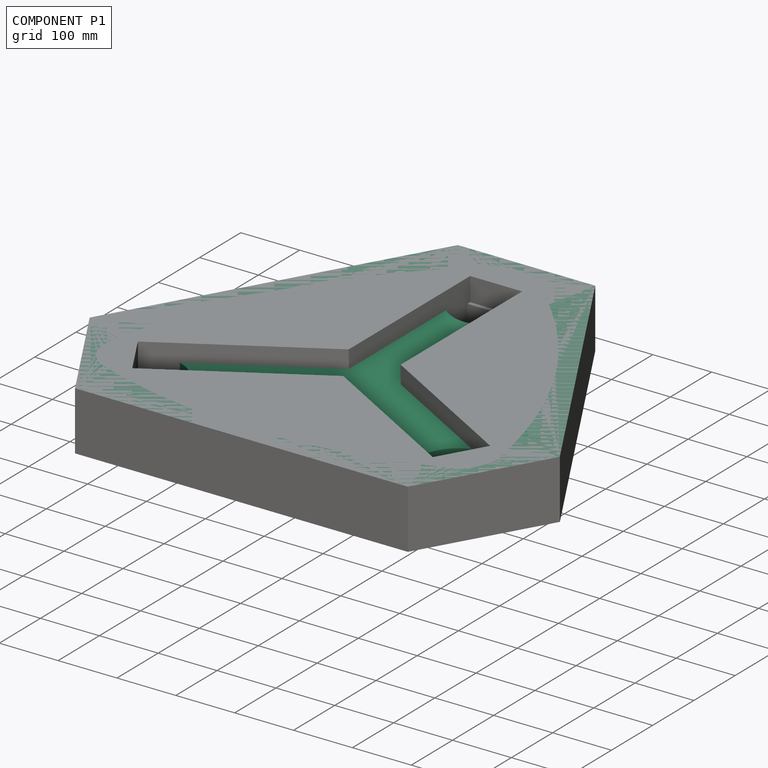
[diagram: component P1 — assembled]
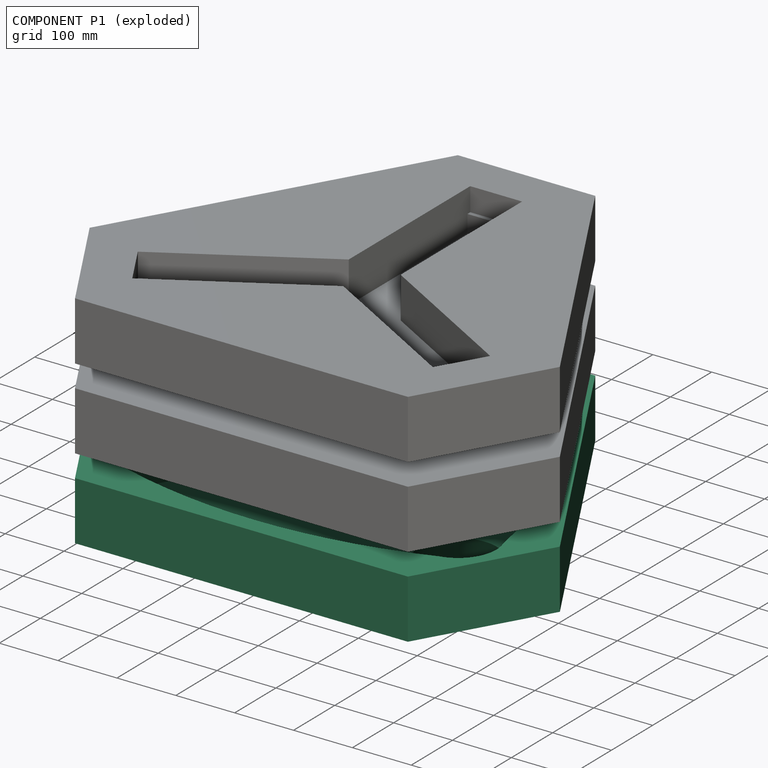
[diagram: component P1 — exploded]
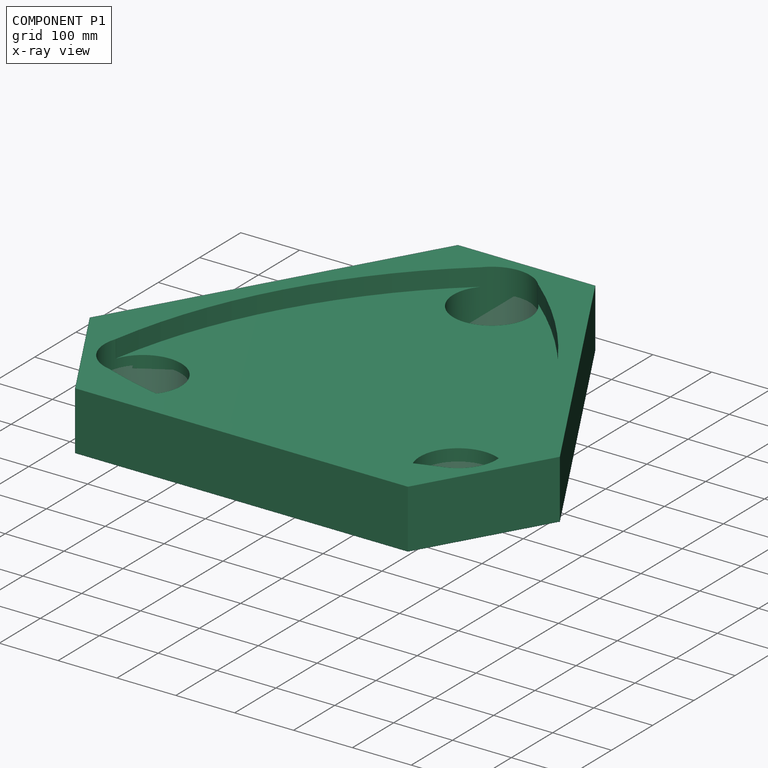
[diagram: component P1 — x-ray view]
COMPONENT P1 — same part as P0; its construction recipe is shown at P0.
Held by: resting contact with P0 (derived edge); resting contact with P2 (derived edge).
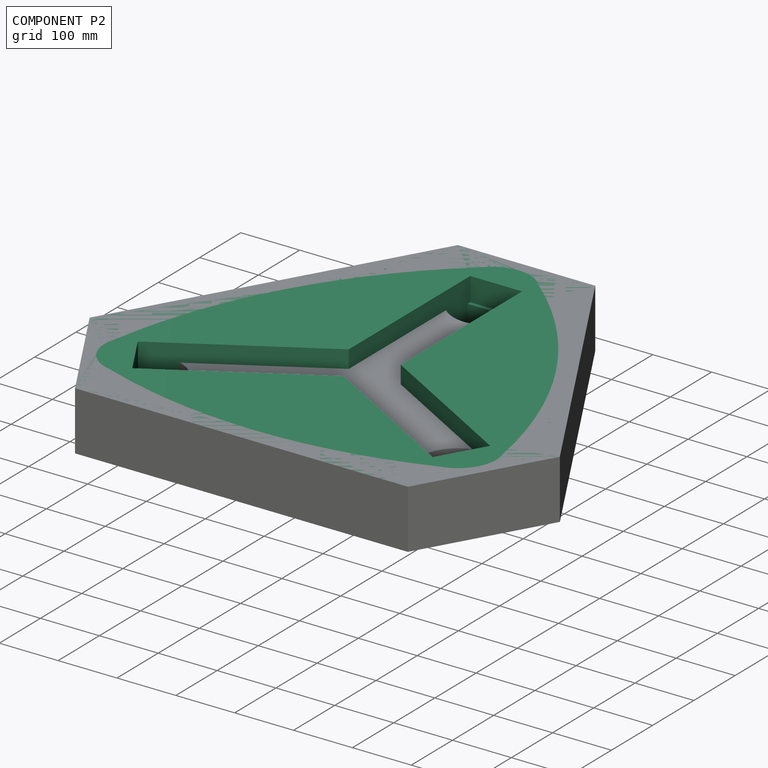
[diagram: component P2 — assembled]
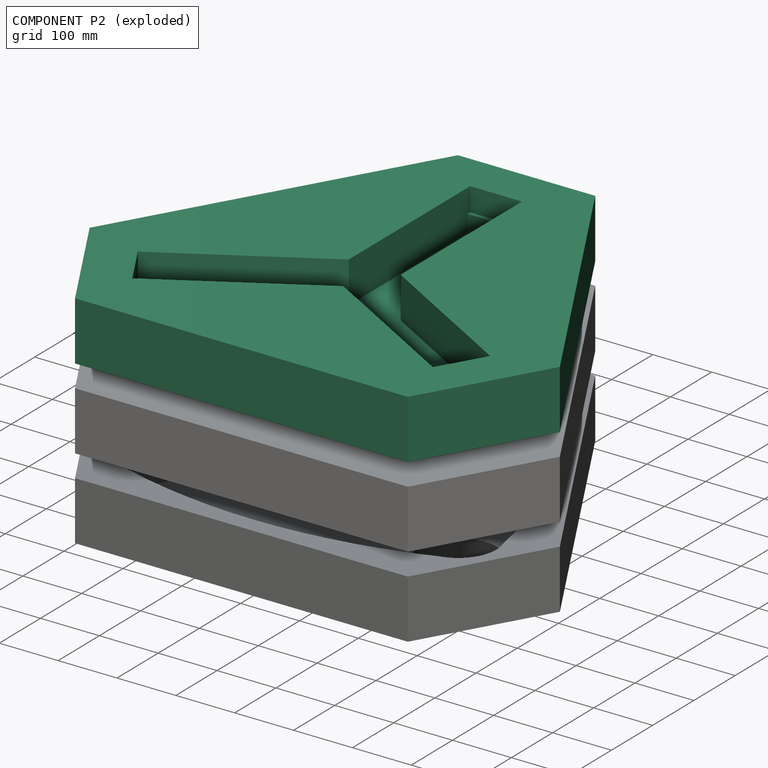
[diagram: component P2 — exploded]
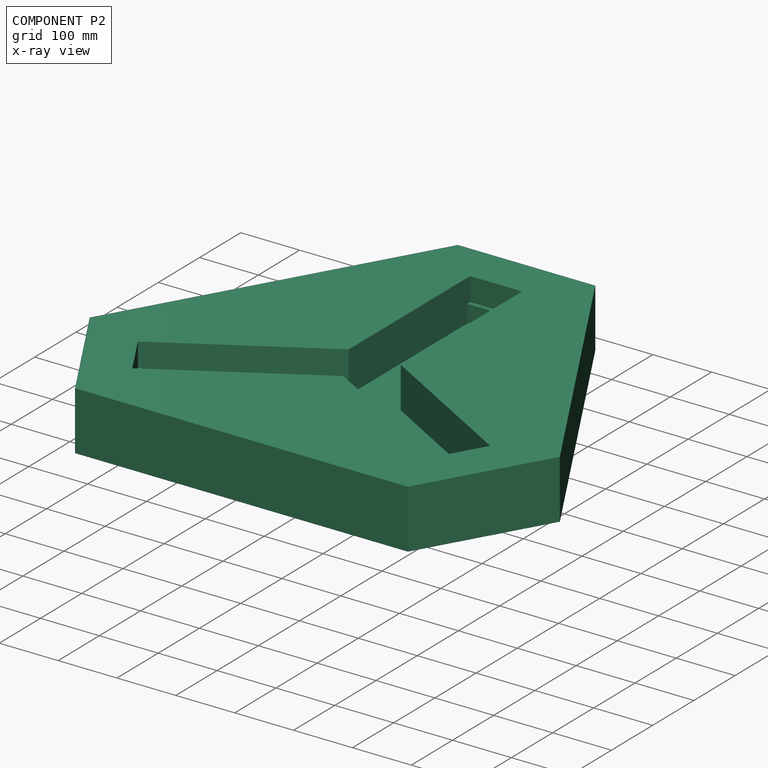
[diagram: component P2 — x-ray view]
COMPONENT P2 — same part as P0; its construction recipe is shown at P0.
Held by: resting contact with P0 (derived edge); resting contact with P1 (derived edge).
PROVENANCE & LICENSES
Assembly and component geometry: a FreeCAD (.FCStd) document from a public repository crawl; components, placements and joints were extracted with FreeCAD and each solid tessellated.
Construction recipes: the document's own serialized feature recipes (and, for linked parts, the recipes of companion documents from the same project).
License: as declared in the source repository (recorded in the dataset sidecar).
Joints: native FreeCAD joints and A2plus constraints are mapped to standard mate types; edges marked 'derived from contact' connect touching components and are measured from the geometry, not modeled.
Verification: 3 of this assembly's 3 components carry a construction recipe (3 from linked companion documents in the same project); the rest are geometry-only. Every component's tessellation passed the extraction mesh gates (mesh-volume checksum against the B-rep where available, bounding-box inflation <= 2%).
Renders: orthographic iso camera (az 35 / el 25); the floor grid conveys scale (grid pitch printed in each image; no ruler). In the exploded view each component is displaced by its stored offset vector: the offsets alone carry the explosion direction (mate normal/axis signs are not orientation cues and do not encode it), and separation distances are assigned per mate-chain, not proportionally to assembly-order depth.
